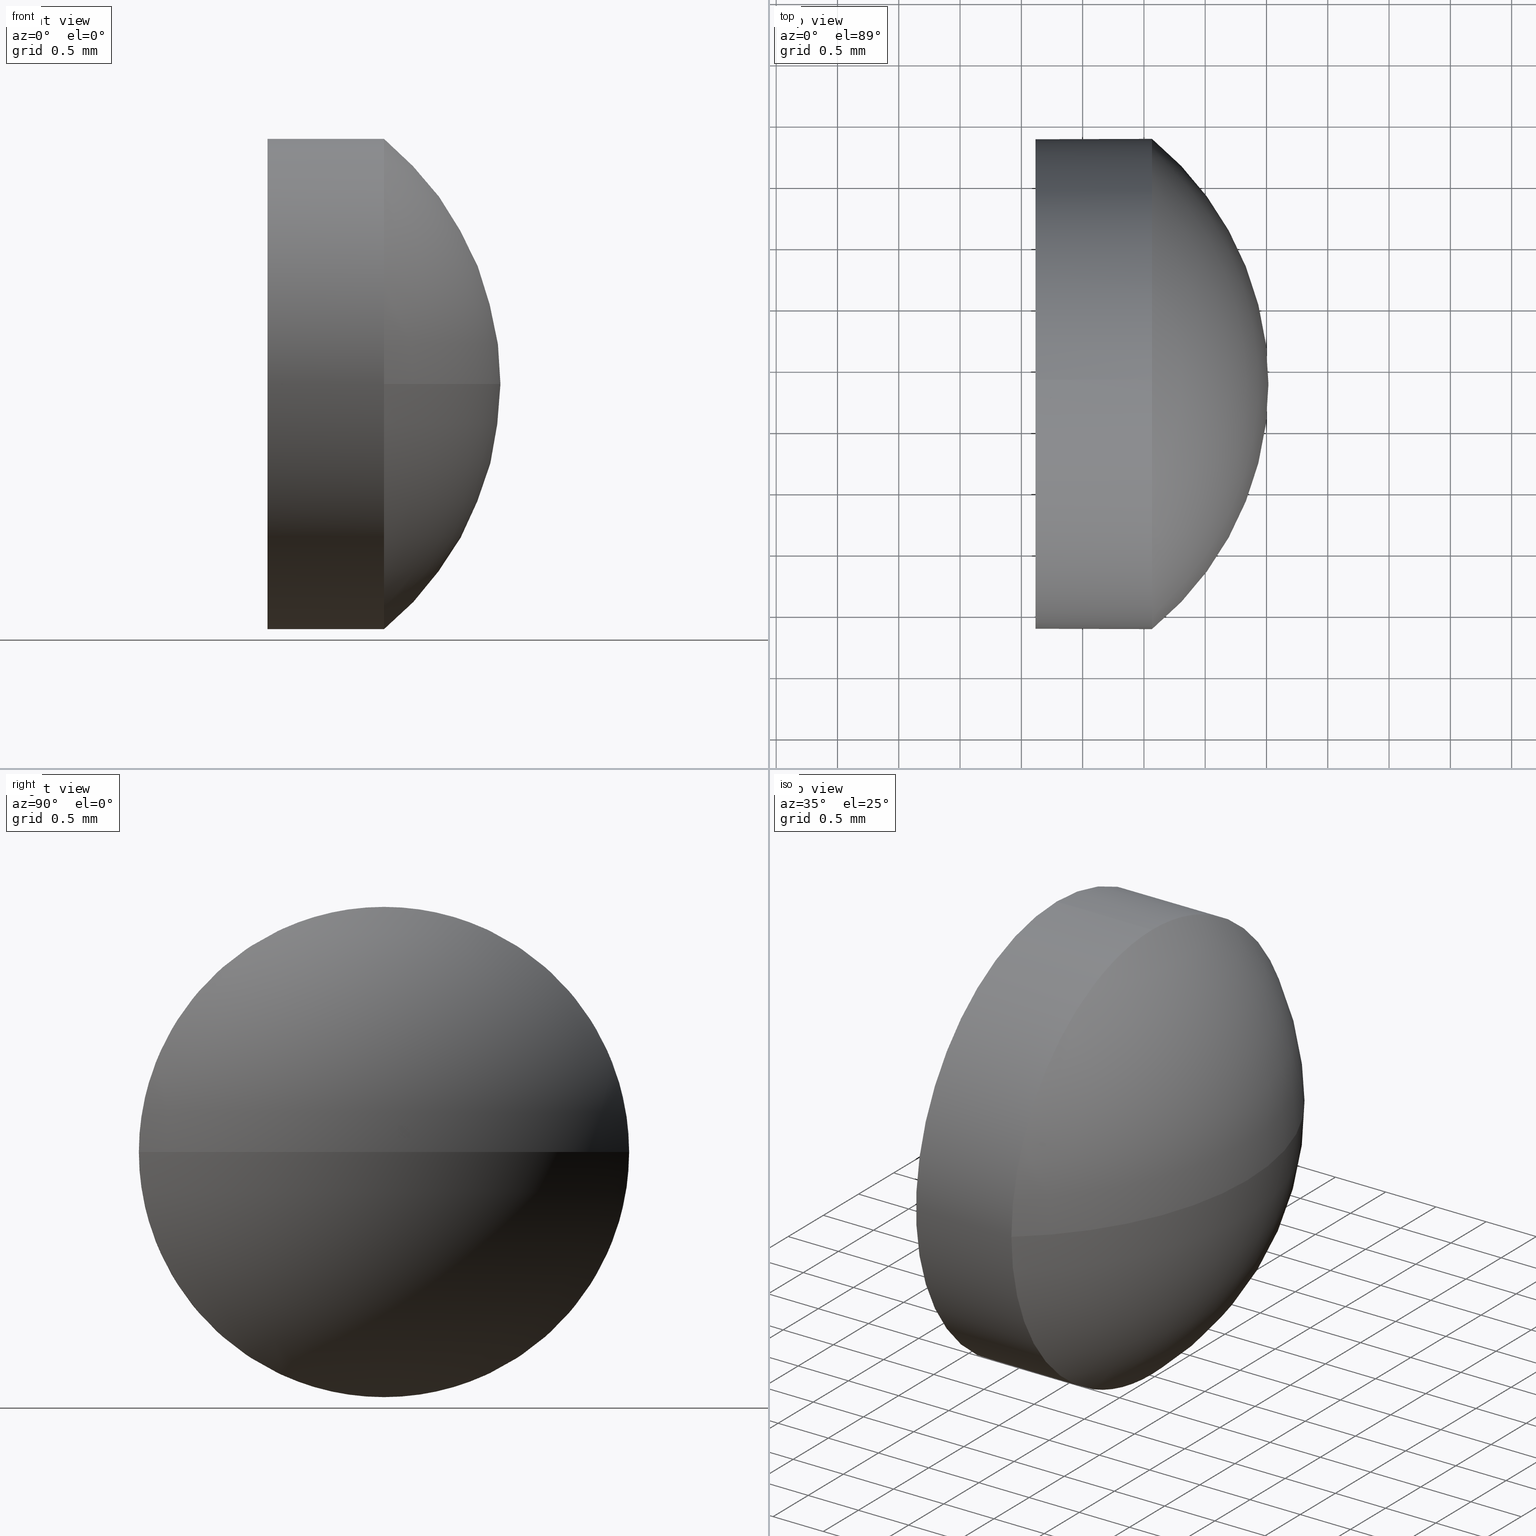
[diagram: canonical four-view strip — front | top / right | iso, engineering-drawing reading convention]
A machine part, canonical four-view strip (front | top / right | iso — engineering-drawing reading convention). The complete STEP part file that produces these views, byte-faithful:
ISO-10303-21;
HEADER;
FILE_DESCRIPTION (( 'STEP AP214' ),
    '1' );
FILE_NAME ('100088.STEP',
    '2019-05-13T02:36:47',
    ( '' ),
    ( '' ),
    'SwSTEP 2.0',
    'SolidWorks 2016',
    '' );
FILE_SCHEMA (( 'AUTOMOTIVE_DESIGN' ));
ENDSEC;

DATA;
#1 = ORIENTED_EDGE ( 'NONE', *, *, #148, .T. ) ;
#2 = EDGE_CURVE ( 'NONE', #59, #139, #153, .T. ) ;
#3 = CYLINDRICAL_SURFACE ( 'NONE', #159, 2.000000000000001800 ) ;
#4 = DIRECTION ( 'NONE',  ( 0.0000000000000000000, 0.0000000000000000000, 1.000000000000000000 ) ) ;
#5 = ORIENTED_EDGE ( 'NONE', *, *, #51, .F. ) ;
#6 = DIRECTION ( 'NONE',  ( 0.0000000000000000000, 0.0000000000000000000, 1.000000000000000000 ) ) ;
#7 = FILL_AREA_STYLE ('',( #141 ) ) ;
#8 =( LENGTH_UNIT ( ) NAMED_UNIT ( * ) SI_UNIT ( .MILLI., .METRE. ) );
#9 = SHAPE_DEFINITION_REPRESENTATION ( #28, #99 ) ;
#10 = EDGE_LOOP ( 'NONE', ( #5, #85, #35, #98 ) ) ;
#11 =( NAMED_UNIT ( * ) SI_UNIT ( $, .STERADIAN. ) SOLID_ANGLE_UNIT ( ) );
#12 = DIRECTION ( 'NONE',  ( 0.0000000000000000000, 0.0000000000000000000, 1.000000000000000000 ) ) ;
#13 = VERTEX_POINT ( 'NONE', #61 ) ;
#14 = AXIS2_PLACEMENT_3D ( 'NONE', #44, #42, #30 ) ;
#15 = CARTESIAN_POINT ( 'NONE',  ( 0.0000000000000000000, 0.0000000000000000000, 0.0000000000000000000 ) ) ;
#16 = CLOSED_SHELL ( 'NONE', ( #39, #172, #171, #40, #76 ) ) ;
#17 = DIRECTION ( 'NONE',  ( 0.0000000000000000000, 0.0000000000000000000, 1.000000000000000000 ) ) ;
#18 = EDGE_CURVE ( 'NONE', #13, #108, #29, .T. ) ;
#19 = DIRECTION ( 'NONE',  ( -0.0000000000000000000, 0.0000000000000000000, -1.000000000000000000 ) ) ;
#20 = CARTESIAN_POINT ( 'NONE',  ( 388.0659552680862700, 29.36813379656234700, 2.000000000000001800 ) ) ;
#21 = CARTESIAN_POINT ( 'NONE',  ( 386.4356921101915500, 29.36813379656234700, 0.0000000000000000000 ) ) ;
#22 = UNCERTAINTY_MEASURE_WITH_UNIT (LENGTH_MEASURE( 1.000000000000000100E-005 ), #131, 'distance_accuracy_value', 'NONE');
#23 = PLANE ( 'NONE',  #169 ) ;
#24 = CARTESIAN_POINT ( 'NONE',  ( 389.0159552680863200, 29.36813379656234700, 0.0000000000000000000 ) ) ;
#25 = SPHERICAL_SURFACE ( 'NONE', #140, 2.580263157894725300 ) ;
#26 = SURFACE_STYLE_FILL_AREA ( #79 ) ;
#27 = ORIENTED_EDGE ( 'NONE', *, *, #36, .T. ) ;
#28 = PRODUCT_DEFINITION_SHAPE ( 'NONE', 'NONE',  #166 ) ;
#29 = CIRCLE ( 'NONE', #14, 2.000000000000001800 ) ;
#30 = DIRECTION ( 'NONE',  ( 0.0000000000000000000, 0.0000000000000000000, 1.000000000000000000 ) ) ;
#31 = APPLICATION_CONTEXT ( 'automotive_design' ) ;
#32 = SURFACE_STYLE_USAGE ( .BOTH. , #177 ) ;
#33 = EDGE_CURVE ( 'NONE', #108, #128, #100, .T. ) ;
#34 = ORIENTED_EDGE ( 'NONE', *, *, #2, .T. ) ;
#35 = ORIENTED_EDGE ( 'NONE', *, *, #60, .F. ) ;
#36 = EDGE_CURVE ( 'NONE', #139, #59, #149, .T. ) ;
#37 = FACE_OUTER_BOUND ( 'NONE', #77, .T. ) ;
#38 = CYLINDRICAL_SURFACE ( 'NONE', #89, 2.000000000000001800 ) ;
#39 = ADVANCED_FACE ( 'NONE', ( #37 ), #3, .T. ) ;
#40 = ADVANCED_FACE ( 'NONE', ( #84 ), #38, .T. ) ;
#41 = PRODUCT ( '100088', '100088', '', ( #97 ) ) ;
#42 = DIRECTION ( 'NONE',  ( -1.000000000000000000, -0.0000000000000000000, -0.0000000000000000000 ) ) ;
#43 = PRODUCT_DEFINITION_FORMATION_WITH_SPECIFIED_SOURCE ( '�κ�', '', #41, .NOT_KNOWN. ) ;
#44 = CARTESIAN_POINT ( 'NONE',  ( 388.0659552680862700, 29.36813379656234700, 0.0000000000000000000 ) ) ;
#45 = PRESENTATION_STYLE_ASSIGNMENT (( #109 ) ) ;
#46 = CIRCLE ( 'NONE', #47, 2.580263157894724400 ) ;
#47 = AXIS2_PLACEMENT_3D ( 'NONE', #21, #78, #106 ) ;
#48 = CARTESIAN_POINT ( 'NONE',  ( 386.7687047090909700, 29.36813379656234700, 2.000000000000001800 ) ) ;
#49 = CARTESIAN_POINT ( 'NONE',  ( 386.4356921101915500, 29.36813379656234700, 0.0000000000000000000 ) ) ;
#50 =( NAMED_UNIT ( * ) SI_UNIT ( $, .STERADIAN. ) SOLID_ANGLE_UNIT ( ) );
#51 = EDGE_CURVE ( 'NONE', #175, #108, #170, .T. ) ;
#52 =( NAMED_UNIT ( * ) PLANE_ANGLE_UNIT ( ) SI_UNIT ( $, .RADIAN. ) );
#53 = DIRECTION ( 'NONE',  ( 0.0000000000000000000, 0.0000000000000000000, 1.000000000000000000 ) ) ;
#54 = EDGE_CURVE ( 'NONE', #175, #143, #46, .T. ) ;
#55 = AXIS2_PLACEMENT_3D ( 'NONE', #15, #12, #57 ) ;
#56 = COLOUR_RGB ( '',1.000000000000000000, 1.000000000000000000, 1.000000000000000000 ) ;
#57 = DIRECTION ( 'NONE',  ( 1.000000000000000000, 0.0000000000000000000, 0.0000000000000000000 ) ) ;
#58 = EDGE_CURVE ( 'NONE', #13, #59, #183, .T. ) ;
#59 = VERTEX_POINT ( 'NONE', #63 ) ;
#60 = EDGE_CURVE ( 'NONE', #128, #143, #114, .T. ) ;
#61 = CARTESIAN_POINT ( 'NONE',  ( 388.0659552680862700, 29.36813379656234700, -2.000000000000001800 ) ) ;
#62 = AXIS2_PLACEMENT_3D ( 'NONE', #154, #90, #73 ) ;
#63 = CARTESIAN_POINT ( 'NONE',  ( 387.1159552680862800, 29.36813379656234700, -2.000000000000001800 ) ) ;
#64 = CARTESIAN_POINT ( 'NONE',  ( 386.7687047090909700, 29.36813379656234700, -2.000000000000001800 ) ) ;
#65 = DIRECTION ( 'NONE',  ( -1.000000000000000000, -0.0000000000000000000, -0.0000000000000000000 ) ) ;
#66 = APPLICATION_PROTOCOL_DEFINITION ( 'draft international standard', 'automotive_design', 1998, #31 ) ;
#67 = SPHERICAL_SURFACE ( 'NONE', #132, 2.580263157894725300 ) ;
#68 = ORIENTED_EDGE ( 'NONE', *, *, #58, .F. ) ;
#69 = ORIENTED_EDGE ( 'NONE', *, *, #51, .T. ) ;
#70 = VECTOR ( 'NONE', #130, 1000.000000000000000 ) ;
#71 = ORIENTED_EDGE ( 'NONE', *, *, #148, .F. ) ;
#72 = EDGE_LOOP ( 'NONE', ( #185, #69, #82, #107 ) ) ;
#73 = DIRECTION ( 'NONE',  ( 0.0000000000000000000, 0.0000000000000000000, 1.000000000000000000 ) ) ;
#74 = PRESENTATION_LAYER_ASSIGNMENT (  '', '', ( #184 ) ) ;
#75 = CARTESIAN_POINT ( 'NONE',  ( 386.7687047090909700, 29.36813379656234700, 0.0000000000000000000 ) ) ;
#76 = ADVANCED_FACE ( 'NONE', ( #147 ), #23, .F. ) ;
#77 = EDGE_LOOP ( 'NONE', ( #118, #111, #104, #71, #81 ) ) ;
#78 = DIRECTION ( 'NONE',  ( -0.0000000000000000000, 0.0000000000000000000, 1.000000000000000000 ) ) ;
#79 = FILL_AREA_STYLE ('',( #120 ) ) ;
#80 = AXIS2_PLACEMENT_3D ( 'NONE', #157, #122, #53 ) ;
#81 = ORIENTED_EDGE ( 'NONE', *, *, #60, .T. ) ;
#82 = ORIENTED_EDGE ( 'NONE', *, *, #18, .F. ) ;
#83 = LINE ( 'NONE', #48, #70 ) ;
#84 = FACE_OUTER_BOUND ( 'NONE', #179, .T. ) ;
#85 = ORIENTED_EDGE ( 'NONE', *, *, #54, .T. ) ;
#86 =( GEOMETRIC_REPRESENTATION_CONTEXT ( 3 ) GLOBAL_UNCERTAINTY_ASSIGNED_CONTEXT ( ( #102 ) ) GLOBAL_UNIT_ASSIGNED_CONTEXT ( ( #165, #168, #135 ) ) REPRESENTATION_CONTEXT ( 'NONE', 'WORKASPACE' ) );
#87 = DIRECTION ( 'NONE',  ( 0.0000000000000000000, 0.0000000000000000000, 1.000000000000000000 ) ) ;
#88 = DIRECTION ( 'NONE',  ( 0.0000000000000000000, 0.0000000000000000000, 1.000000000000000000 ) ) ;
#89 = AXIS2_PLACEMENT_3D ( 'NONE', #176, #115, #4 ) ;
#90 = DIRECTION ( 'NONE',  ( -1.000000000000000000, -0.0000000000000000000, -0.0000000000000000000 ) ) ;
#91 = DIRECTION ( 'NONE',  ( 1.000000000000000000, 0.0000000000000000000, 0.0000000000000000000 ) ) ;
#92 = CARTESIAN_POINT ( 'NONE',  ( 388.0659552680862700, 31.36813379656235100, 0.0000000000000000000 ) ) ;
#93 = PRODUCT_RELATED_PRODUCT_CATEGORY ( 'part', '', ( #41 ) ) ;
#94 = DIRECTION ( 'NONE',  ( 0.0000000000000000000, 1.000000000000000000, 0.0000000000000000000 ) ) ;
#95 = CARTESIAN_POINT ( 'NONE',  ( 388.0659552680862700, 27.36813379656234700, -2.449293598294707900E-016 ) ) ;
#96 = SURFACE_SIDE_STYLE ('',( #26 ) ) ;
#97 = PRODUCT_CONTEXT ( 'NONE', #31, 'mechanical' ) ;
#98 = ORIENTED_EDGE ( 'NONE', *, *, #33, .F. ) ;
#99 = ADVANCED_BREP_SHAPE_REPRESENTATION ( '100088', ( #127, #55 ), #162 ) ;
#100 = CIRCLE ( 'NONE', #62, 2.000000000000001800 ) ;
#101 = PRODUCT_DEFINITION_CONTEXT ( 'detailed design', #167, 'design' ) ;
#102 = UNCERTAINTY_MEASURE_WITH_UNIT (LENGTH_MEASURE( 1.000000000000000100E-005 ), #165, 'distance_accuracy_value', 'NONE');
#103 = DIRECTION ( 'NONE',  ( -1.000000000000000000, -0.0000000000000000000, -0.0000000000000000000 ) ) ;
#104 = ORIENTED_EDGE ( 'NONE', *, *, #36, .F. ) ;
#105 = CARTESIAN_POINT ( 'NONE',  ( 388.0659552680862700, 29.36813379656234700, 0.0000000000000000000 ) ) ;
#106 = DIRECTION ( 'NONE',  ( 1.000000000000000000, 0.0000000000000000000, 0.0000000000000000000 ) ) ;
#107 = ORIENTED_EDGE ( 'NONE', *, *, #110, .F. ) ;
#108 = VERTEX_POINT ( 'NONE', #95 ) ;
#109 = SURFACE_STYLE_USAGE ( .BOTH. , #96 ) ;
#110 = EDGE_CURVE ( 'NONE', #143, #13, #155, .T. ) ;
#111 = ORIENTED_EDGE ( 'NONE', *, *, #58, .T. ) ;
#112 =( GEOMETRIC_REPRESENTATION_CONTEXT ( 3 ) GLOBAL_UNCERTAINTY_ASSIGNED_CONTEXT ( ( #22 ) ) GLOBAL_UNIT_ASSIGNED_CONTEXT ( ( #131, #52, #50 ) ) REPRESENTATION_CONTEXT ( 'NONE', 'WORKASPACE' ) );
#113 = DIRECTION ( 'NONE',  ( -1.000000000000000000, -0.0000000000000000000, -0.0000000000000000000 ) ) ;
#114 = CIRCLE ( 'NONE', #173, 2.000000000000001800 ) ;
#115 = DIRECTION ( 'NONE',  ( -1.000000000000000000, -0.0000000000000000000, -0.0000000000000000000 ) ) ;
#116 = CARTESIAN_POINT ( 'NONE',  ( 387.1159552680862800, 29.36813379656234700, 0.0000000000000000000 ) ) ;
#117 = CARTESIAN_POINT ( 'NONE',  ( 387.1159552680862800, 29.36813379656234700, 0.0000000000000000000 ) ) ;
#118 = ORIENTED_EDGE ( 'NONE', *, *, #110, .T. ) ;
#119 = DIRECTION ( 'NONE',  ( 0.0000000000000000000, 1.000000000000000000, 1.224646799147353700E-016 ) ) ;
#120 = FILL_AREA_STYLE_COLOUR ( '', #56 ) ;
#121 = DIRECTION ( 'NONE',  ( 0.0000000000000000000, 1.224646799147353200E-016, -1.000000000000000000 ) ) ;
#122 = DIRECTION ( 'NONE',  ( -1.000000000000000000, -0.0000000000000000000, -0.0000000000000000000 ) ) ;
#123 = ORIENTED_EDGE ( 'NONE', *, *, #2, .F. ) ;
#124 = SURFACE_STYLE_FILL_AREA ( #7 ) ;
#125 = ORIENTED_EDGE ( 'NONE', *, *, #33, .T. ) ;
#126 = AXIS2_PLACEMENT_3D ( 'NONE', #49, #121, #119 ) ;
#127 = MANIFOLD_SOLID_BREP ( '��ת1', #16 ) ;
#128 = VERTEX_POINT ( 'NONE', #20 ) ;
#129 = DIRECTION ( 'NONE',  ( -1.000000000000000000, -0.0000000000000000000, -0.0000000000000000000 ) ) ;
#130 = DIRECTION ( 'NONE',  ( -1.000000000000000000, -0.0000000000000000000, -0.0000000000000000000 ) ) ;
#131 =( LENGTH_UNIT ( ) NAMED_UNIT ( * ) SI_UNIT ( .MILLI., .METRE. ) );
#132 = AXIS2_PLACEMENT_3D ( 'NONE', #144, #178, #180 ) ;
#133 = DIRECTION ( 'NONE',  ( 0.0000000000000000000, 0.0000000000000000000, -1.000000000000000000 ) ) ;
#134 = FACE_OUTER_BOUND ( 'NONE', #10, .T. ) ;
#135 =( NAMED_UNIT ( * ) SI_UNIT ( $, .STERADIAN. ) SOLID_ANGLE_UNIT ( ) );
#136 = ORIENTED_EDGE ( 'NONE', *, *, #18, .T. ) ;
#137 = AXIS2_PLACEMENT_3D ( 'NONE', #116, #103, #88 ) ;
#138 = AXIS2_PLACEMENT_3D ( 'NONE', #117, #113, #17 ) ;
#139 = VERTEX_POINT ( 'NONE', #160 ) ;
#140 = AXIS2_PLACEMENT_3D ( 'NONE', #182, #19, #94 ) ;
#141 = FILL_AREA_STYLE_COLOUR ( '', #146 ) ;
#142 = UNCERTAINTY_MEASURE_WITH_UNIT (LENGTH_MEASURE( 1.000000000000000100E-005 ), #8, 'distance_accuracy_value', 'NONE');
#143 = VERTEX_POINT ( 'NONE', #92 ) ;
#144 = CARTESIAN_POINT ( 'NONE',  ( 386.4356921101915500, 29.36813379656234700, 0.0000000000000000000 ) ) ;
#145 = CARTESIAN_POINT ( 'NONE',  ( 387.1159552680862800, 29.36813379656234700, 0.0000000000000000000 ) ) ;
#146 = COLOUR_RGB ( '',1.000000000000000000, 1.000000000000000000, 1.000000000000000000 ) ;
#147 = FACE_OUTER_BOUND ( 'NONE', #150, .T. ) ;
#148 = EDGE_CURVE ( 'NONE', #128, #139, #83, .T. ) ;
#149 = CIRCLE ( 'NONE', #137, 2.000000000000001800 ) ;
#150 = EDGE_LOOP ( 'NONE', ( #27, #34 ) ) ;
#151 = MECHANICAL_DESIGN_GEOMETRIC_PRESENTATION_REPRESENTATION (  '', ( #184 ), #112 ) ;
#152 = VECTOR ( 'NONE', #65, 1000.000000000000000 ) ;
#153 = CIRCLE ( 'NONE', #138, 2.000000000000001800 ) ;
#154 = CARTESIAN_POINT ( 'NONE',  ( 388.0659552680862700, 29.36813379656234700, 0.0000000000000000000 ) ) ;
#155 = CIRCLE ( 'NONE', #80, 2.000000000000001800 ) ;
#156 =( NAMED_UNIT ( * ) PLANE_ANGLE_UNIT ( ) SI_UNIT ( $, .RADIAN. ) );
#157 = CARTESIAN_POINT ( 'NONE',  ( 388.0659552680862700, 29.36813379656234700, 0.0000000000000000000 ) ) ;
#158 = DIRECTION ( 'NONE',  ( -1.000000000000000000, -0.0000000000000000000, -0.0000000000000000000 ) ) ;
#159 = AXIS2_PLACEMENT_3D ( 'NONE', #75, #129, #87 ) ;
#160 = CARTESIAN_POINT ( 'NONE',  ( 387.1159552680862800, 29.36813379656234700, 2.000000000000001800 ) ) ;
#161 = APPLICATION_PROTOCOL_DEFINITION ( 'draft international standard', 'automotive_design', 1998, #167 ) ;
#162 =( GEOMETRIC_REPRESENTATION_CONTEXT ( 3 ) GLOBAL_UNCERTAINTY_ASSIGNED_CONTEXT ( ( #142 ) ) GLOBAL_UNIT_ASSIGNED_CONTEXT ( ( #8, #156, #11 ) ) REPRESENTATION_CONTEXT ( 'NONE', 'WORKASPACE' ) );
#163 = STYLED_ITEM ( 'NONE', ( #45 ), #99 ) ;
#164 = PRESENTATION_STYLE_ASSIGNMENT (( #32 ) ) ;
#165 =( LENGTH_UNIT ( ) NAMED_UNIT ( * ) SI_UNIT ( .MILLI., .METRE. ) );
#166 = PRODUCT_DEFINITION ( 'δ֪', '', #43, #101 ) ;
#167 = APPLICATION_CONTEXT ( 'automotive_design' ) ;
#168 =( NAMED_UNIT ( * ) PLANE_ANGLE_UNIT ( ) SI_UNIT ( $, .RADIAN. ) );
#169 = AXIS2_PLACEMENT_3D ( 'NONE', #145, #91, #133 ) ;
#170 = CIRCLE ( 'NONE', #126, 2.580263157894724400 ) ;
#171 = ADVANCED_FACE ( 'NONE', ( #134 ), #67, .T. ) ;
#172 = ADVANCED_FACE ( 'NONE', ( #174 ), #25, .T. ) ;
#173 = AXIS2_PLACEMENT_3D ( 'NONE', #105, #158, #6 ) ;
#174 = FACE_OUTER_BOUND ( 'NONE', #72, .T. ) ;
#175 = VERTEX_POINT ( 'NONE', #24 ) ;
#176 = CARTESIAN_POINT ( 'NONE',  ( 386.7687047090909700, 29.36813379656234700, 0.0000000000000000000 ) ) ;
#177 = SURFACE_SIDE_STYLE ('',( #124 ) ) ;
#178 = DIRECTION ( 'NONE',  ( -0.0000000000000000000, 0.0000000000000000000, -1.000000000000000000 ) ) ;
#179 = EDGE_LOOP ( 'NONE', ( #68, #136, #125, #1, #123 ) ) ;
#180 = DIRECTION ( 'NONE',  ( 0.0000000000000000000, 1.000000000000000000, 0.0000000000000000000 ) ) ;
#181 = MECHANICAL_DESIGN_GEOMETRIC_PRESENTATION_REPRESENTATION (  '', ( #163 ), #86 ) ;
#182 = CARTESIAN_POINT ( 'NONE',  ( 386.4356921101915500, 29.36813379656234700, 0.0000000000000000000 ) ) ;
#183 = LINE ( 'NONE', #64, #152 ) ;
#184 = STYLED_ITEM ( 'NONE', ( #164 ), #127 ) ;
#185 = ORIENTED_EDGE ( 'NONE', *, *, #54, .F. ) ;
#186 = PRESENTATION_LAYER_ASSIGNMENT (  '', '', ( #163 ) ) ;
ENDSEC;
END-ISO-10303-21;
